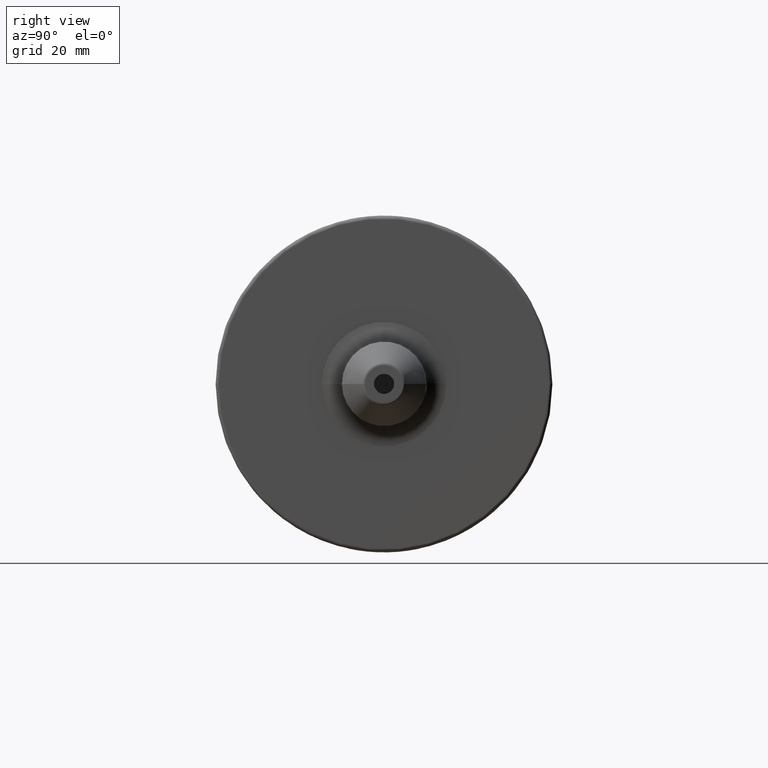
[diagram: clean part render]
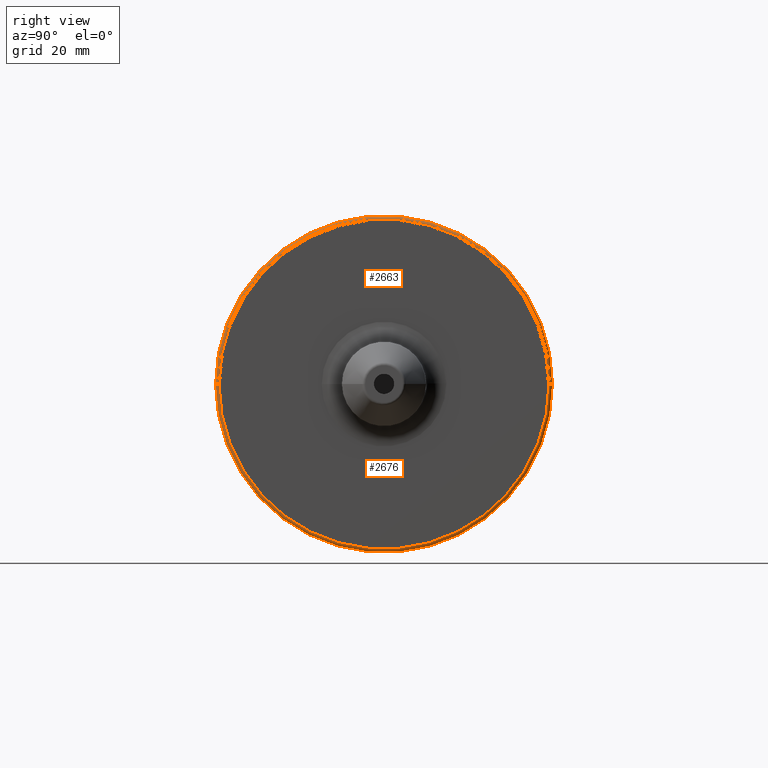
[diagram: same view with one multi-face feature highlighted, each face labeled with its STEP entity id]
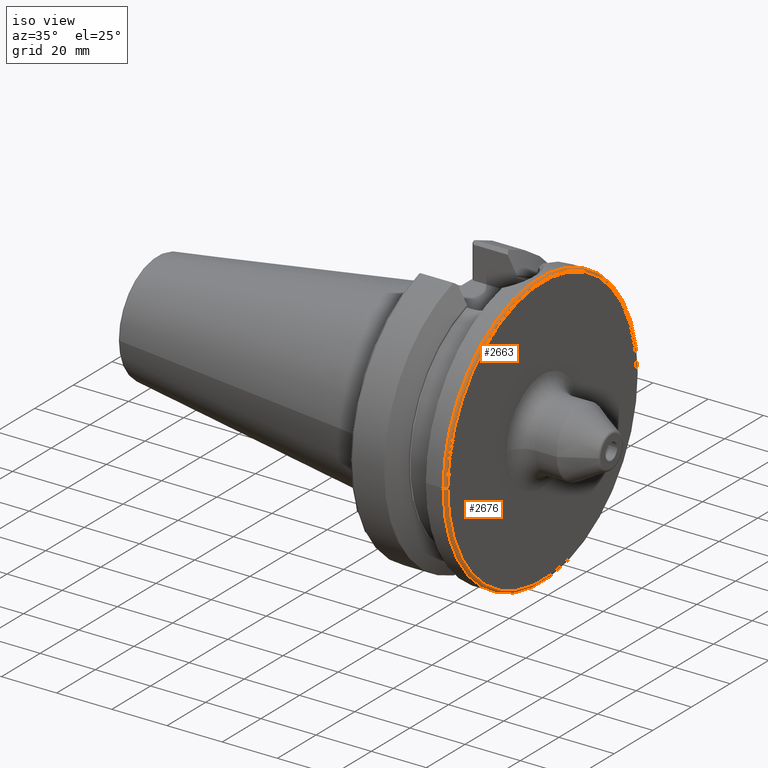
[diagram: same view with one multi-face feature highlighted, each face labeled with its STEP entity id]
A machine part, right view. The highlighted faces form ONE feature: a constant-radius fillet chain: 2 tangent blend faces with common blend radius 1 mm. The faces share edges in the B-rep.
A second angle (iso view) of the same feature is appended — it is thin or edge-on in the first view.
Their STEP definitions:
[1] entity #2663 (Torus):
#787=CARTESIAN_POINT('',(3.7E1,0.E0,0.E0));
#788=DIRECTION('',(1.E0,0.E0,0.E0));
#789=DIRECTION('',(0.E0,1.E0,0.E0));
#790=AXIS2_PLACEMENT_3D('',#787,#788,#789);
#814=CARTESIAN_POINT('',(3.8E1,0.E0,0.E0));
#815=DIRECTION('',(1.E0,0.E0,0.E0));
#816=DIRECTION('',(0.E0,1.E0,0.E0));
#817=AXIS2_PLACEMENT_3D('',#814,#815,#816);
#819=CARTESIAN_POINT('',(3.7E1,4.89875E1,0.E0));
#820=DIRECTION('',(0.E0,0.E0,1.E0));
#821=DIRECTION('',(1.E0,0.E0,0.E0));
#822=AXIS2_PLACEMENT_3D('',#819,#820,#821);
#824=CARTESIAN_POINT('',(3.7E1,-4.89875E1,-1.199847701465E-14));
#825=DIRECTION('',(0.E0,0.E0,-1.E0));
#826=DIRECTION('',(1.E0,0.E0,0.E0));
#827=AXIS2_PLACEMENT_3D('',#824,#825,#826);
#1367=CARTESIAN_POINT('',(3.7E1,4.99875E1,0.E0));
#1368=VERTEX_POINT('',#1367);
#1369=CARTESIAN_POINT('',(3.7E1,-4.99875E1,0.E0));
#1370=VERTEX_POINT('',#1369);
#1437=CARTESIAN_POINT('',(3.8E1,4.89875E1,0.E0));
#1438=VERTEX_POINT('',#1437);
#1439=CARTESIAN_POINT('',(3.8E1,-4.89875E1,-1.199847701465E-14));
#1440=VERTEX_POINT('',#1439);
#2649=CARTESIAN_POINT('',(3.7E1,0.E0,0.E0));
#2650=DIRECTION('',(1.E0,0.E0,0.E0));
#2651=DIRECTION('',(0.E0,-1.E0,0.E0));
#2652=AXIS2_PLACEMENT_3D('',#2649,#2650,#2651);
#2653=TOROIDAL_SURFACE('',#2652,4.89875E1,1.E0);
#2655=ORIENTED_EDGE('',*,*,#2654,.F.);
#2657=ORIENTED_EDGE('',*,*,#2656,.T.);
#2659=ORIENTED_EDGE('',*,*,#2658,.T.);
#2660=ORIENTED_EDGE('',*,*,#2640,.F.);
#2661=EDGE_LOOP('',(#2655,#2657,#2659,#2660));
#2662=FACE_OUTER_BOUND('',#2661,.F.);
#2663=ADVANCED_FACE('',(#2662),#2653,.T.);
#791=CIRCLE('',#790,4.99875E1);
#818=CIRCLE('',#817,4.89875E1);
#823=CIRCLE('',#822,1.E0);
#828=CIRCLE('',#827,1.E0);
#2640=EDGE_CURVE('',#1368,#1370,#791,.T.);
#2654=EDGE_CURVE('',#1438,#1368,#823,.T.);
#2656=EDGE_CURVE('',#1438,#1440,#818,.T.);
#2658=EDGE_CURVE('',#1440,#1370,#828,.T.);
[2] entity #2676 (Torus):
#254=CARTESIAN_POINT('',(3.7E1,0.E0,0.E0));
#255=DIRECTION('',(-1.E0,0.E0,0.E0));
#256=DIRECTION('',(0.E0,1.E0,0.E0));
#257=AXIS2_PLACEMENT_3D('',#254,#255,#256);
#819=CARTESIAN_POINT('',(3.7E1,4.89875E1,0.E0));
#820=DIRECTION('',(0.E0,0.E0,1.E0));
#821=DIRECTION('',(1.E0,0.E0,0.E0));
#822=AXIS2_PLACEMENT_3D('',#819,#820,#821);
#824=CARTESIAN_POINT('',(3.7E1,-4.89875E1,-1.199847701465E-14));
#825=DIRECTION('',(0.E0,0.E0,-1.E0));
#826=DIRECTION('',(1.E0,0.E0,0.E0));
#827=AXIS2_PLACEMENT_3D('',#824,#825,#826);
#829=CARTESIAN_POINT('',(3.8E1,0.E0,0.E0));
#830=DIRECTION('',(-1.E0,0.E0,0.E0));
#831=DIRECTION('',(0.E0,1.E0,0.E0));
#832=AXIS2_PLACEMENT_3D('',#829,#830,#831);
#1367=CARTESIAN_POINT('',(3.7E1,4.99875E1,0.E0));
#1368=VERTEX_POINT('',#1367);
#1369=CARTESIAN_POINT('',(3.7E1,-4.99875E1,0.E0));
#1370=VERTEX_POINT('',#1369);
#1437=CARTESIAN_POINT('',(3.8E1,4.89875E1,0.E0));
#1438=VERTEX_POINT('',#1437);
#1439=CARTESIAN_POINT('',(3.8E1,-4.89875E1,-1.199847701465E-14));
#1440=VERTEX_POINT('',#1439);
#2664=CARTESIAN_POINT('',(3.7E1,0.E0,0.E0));
#2665=DIRECTION('',(1.E0,0.E0,0.E0));
#2666=DIRECTION('',(0.E0,-1.E0,0.E0));
#2667=AXIS2_PLACEMENT_3D('',#2664,#2665,#2666);
#2668=TOROIDAL_SURFACE('',#2667,4.89875E1,1.E0);
#2669=ORIENTED_EDGE('',*,*,#2654,.T.);
#2670=ORIENTED_EDGE('',*,*,#1903,.T.);
#2671=ORIENTED_EDGE('',*,*,#2658,.F.);
#2673=ORIENTED_EDGE('',*,*,#2672,.F.);
#2674=EDGE_LOOP('',(#2669,#2670,#2671,#2673));
#2675=FACE_OUTER_BOUND('',#2674,.F.);
#2676=ADVANCED_FACE('',(#2675),#2668,.T.);
#258=CIRCLE('',#257,4.99875E1);
#823=CIRCLE('',#822,1.E0);
#828=CIRCLE('',#827,1.E0);
#833=CIRCLE('',#832,4.89875E1);
#1903=EDGE_CURVE('',#1368,#1370,#258,.T.);
#2654=EDGE_CURVE('',#1438,#1368,#823,.T.);
#2658=EDGE_CURVE('',#1440,#1370,#828,.T.);
#2672=EDGE_CURVE('',#1438,#1440,#833,.T.);